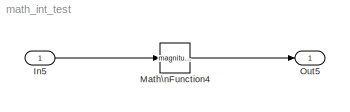
MODEL math_int_test
KIND model
BLOCK [Inport] In5
  IconDisplay = Port number
  OutDataTypeStr = int32
  SID = 1
BLOCK [Math] Math\nFunction4
  Operator = magnitude^2
  Ports = [1, 1]
  SID = 2
BLOCK [Outport] Out5
  IconDisplay = Port number
  SID = 3
LINE In5:1 -> Math\nFunction4:1
LINE Math\nFunction4:1 -> Out5:1
